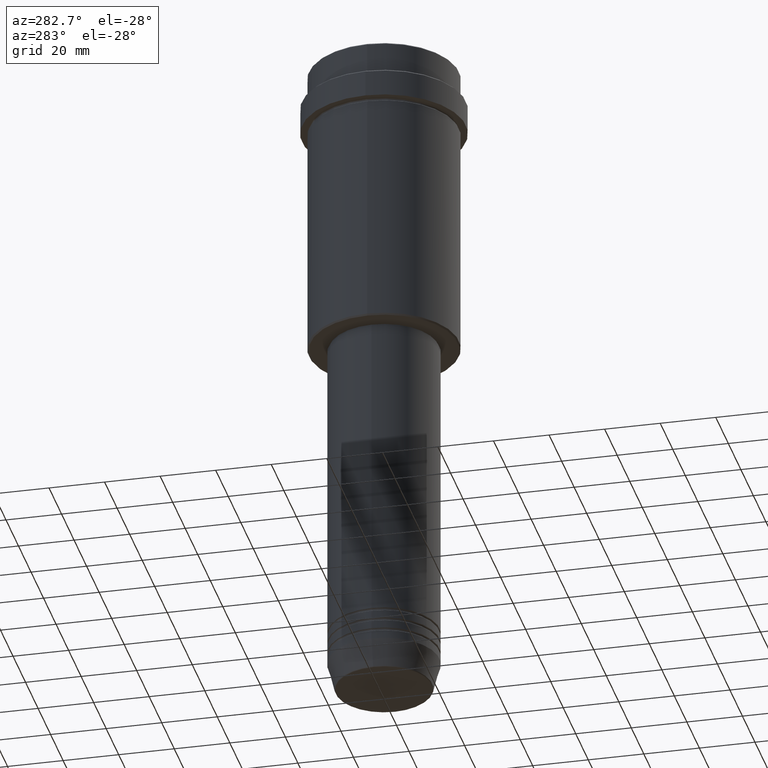
[diagram: clean part render]
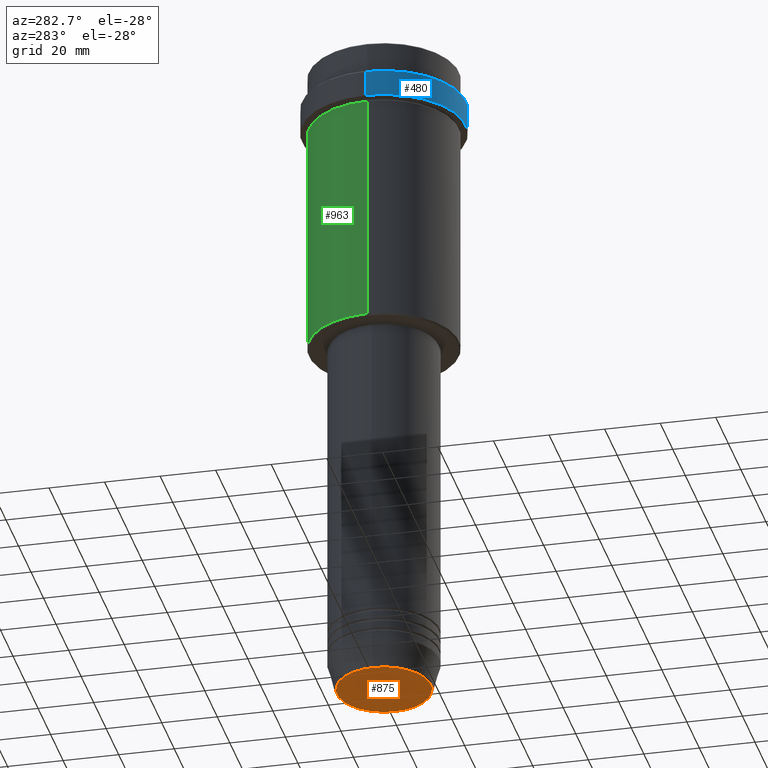
[diagram: same view with three faces highlighted in distinct colors, each labeled with its STEP entity id]
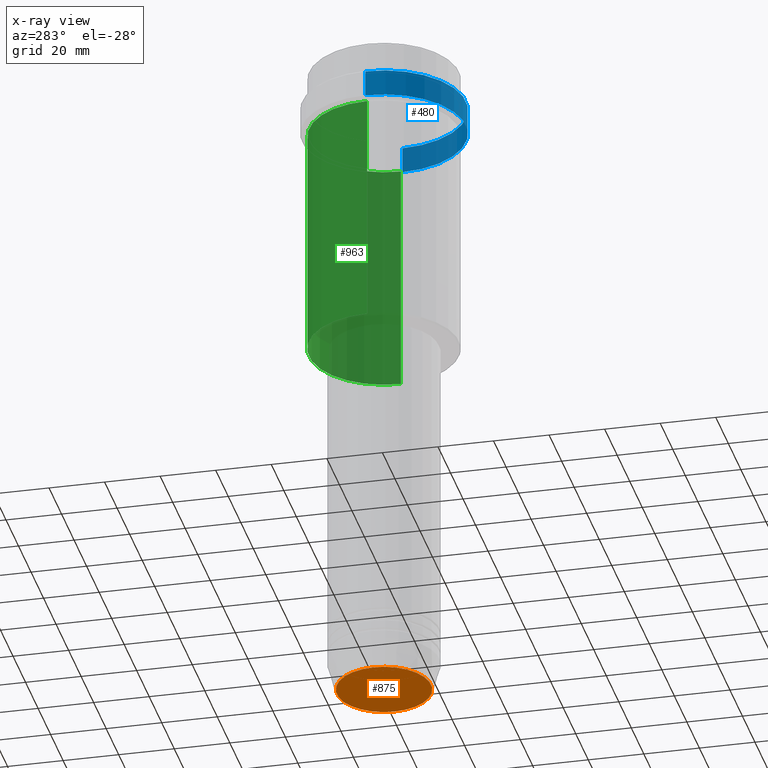
[diagram: x-ray of the same camera — body ghosted, the three highlighted faces saturated]
A machine part, auxiliary view with three faces highlighted in distinct colors.
The next image is the same camera in x-ray (body ghosted, the three faces saturated) — at least one of them is partly hidden behind the body in this view.
Their STEP definitions:

[orange] entity #875 — the highlighted planar face has unit normal (0, -0, 1).
#49 = EDGE_CURVE ( 'NONE', #831, #1056, #602, .T. ) ;
#79 = CARTESIAN_POINT ( 'NONE',  ( 16.93684458169929741, 0.000000000000000000, -243.0000000000000568 ) ) ;
#130 = DIRECTION ( 'NONE',  ( 0.000000000000000000, 0.000000000000000000, -1.000000000000000000 ) ) ;
#208 = DIRECTION ( 'NONE',  ( 0.000000000000000000, 0.000000000000000000, -1.000000000000000000 ) ) ;
#219 = DIRECTION ( 'NONE',  ( 1.000000000000000000, 0.000000000000000000, 0.000000000000000000 ) ) ;
#286 = AXIS2_PLACEMENT_3D ( 'NONE', #376, #1137, #1278 ) ;
#376 = CARTESIAN_POINT ( 'NONE',  ( 0.000000000000000000, 0.000000000000000000, -243.0000000000000568 ) ) ;
#381 = CARTESIAN_POINT ( 'NONE',  ( -16.93684458169929741, 2.103738199747890381E-15, -243.0000000000000568 ) ) ;
#422 = CIRCLE ( 'NONE', #1208, 16.93684458169929741 ) ;
#427 = CARTESIAN_POINT ( 'NONE',  ( 0.000000000000000000, 0.000000000000000000, -243.0000000000000568 ) ) ;
#602 = CIRCLE ( 'NONE', #851, 16.93684458169929741 ) ;
#735 = ORIENTED_EDGE ( 'NONE', *, *, #49, .T. ) ;
#788 = CARTESIAN_POINT ( 'NONE',  ( 0.000000000000000000, 0.000000000000000000, -243.0000000000000568 ) ) ;
#831 = VERTEX_POINT ( 'NONE', #381 ) ;
#851 = AXIS2_PLACEMENT_3D ( 'NONE', #427, #208, #219 ) ;
#875 = ADVANCED_FACE ( 'NONE', ( #914 ), #1153, .F. ) ;
#877 = DIRECTION ( 'NONE',  ( 1.000000000000000000, 0.000000000000000000, 0.000000000000000000 ) ) ;
#914 = FACE_OUTER_BOUND ( 'NONE', #1030, .T. ) ;
#1030 = EDGE_LOOP ( 'NONE', ( #1100, #735 ) ) ;
#1056 = VERTEX_POINT ( 'NONE', #79 ) ;
#1100 = ORIENTED_EDGE ( 'NONE', *, *, #1195, .T. ) ;
#1137 = DIRECTION ( 'NONE',  ( 0.000000000000000000, -0.000000000000000000, 1.000000000000000000 ) ) ;
#1153 = PLANE ( 'NONE',  #286 ) ;
#1195 = EDGE_CURVE ( 'NONE', #1056, #831, #422, .T. ) ;
#1208 = AXIS2_PLACEMENT_3D ( 'NONE', #788, #130, #877 ) ;
#1278 = DIRECTION ( 'NONE',  ( 1.000000000000000000, 0.000000000000000000, 0.000000000000000000 ) ) ;

[blue] entity #480 — the highlighted cylindrical surface (partial cylindrical patch) has radius 29.5 mm, axis along (-0, -0, 1).
#74 = CARTESIAN_POINT ( 'NONE',  ( 0.000000000000000000, 0.000000000000000000, -12.50000000000008704 ) ) ;
#113 = DIRECTION ( 'NONE',  ( -0.000000000000000000, -0.000000000000000000, 1.000000000000000000 ) ) ;
#134 = CARTESIAN_POINT ( 'NONE',  ( 0.000000000000000000, 0.000000000000000000, -22.00000000000000711 ) ) ;
#161 = CARTESIAN_POINT ( 'NONE',  ( -29.50000000000000000, 3.612708057484691604E-15, 0.000000000000000000 ) ) ;
#177 = ORIENTED_EDGE ( 'NONE', *, *, #571, .T. ) ;
#206 = DIRECTION ( 'NONE',  ( 1.000000000000000000, 0.000000000000000000, 0.000000000000000000 ) ) ;
#213 = VECTOR ( 'NONE', #1350, 1000.000000000000000 ) ;
#217 = ORIENTED_EDGE ( 'NONE', *, *, #238, .T. ) ;
#238 = EDGE_CURVE ( 'NONE', #825, #1246, #485, .T. ) ;
#244 = DIRECTION ( 'NONE',  ( 1.000000000000000000, 0.000000000000000000, 0.000000000000000000 ) ) ;
#251 = AXIS2_PLACEMENT_3D ( 'NONE', #74, #1069, #459 ) ;
#261 = DIRECTION ( 'NONE',  ( -0.000000000000000000, -0.000000000000000000, 1.000000000000000000 ) ) ;
#278 = EDGE_CURVE ( 'NONE', #565, #409, #347, .T. ) ;
#347 = CIRCLE ( 'NONE', #558, 29.49999999999999645 ) ;
#409 = VERTEX_POINT ( 'NONE', #1370 ) ;
#459 = DIRECTION ( 'NONE',  ( 1.000000000000000000, 0.000000000000000000, 0.000000000000000000 ) ) ;
#480 = ADVANCED_FACE ( 'NONE', ( #945 ), #1377, .T. ) ;
#485 = CIRCLE ( 'NONE', #251, 29.50000000000000000 ) ;
#515 = CARTESIAN_POINT ( 'NONE',  ( 29.50000000000000000, 0.000000000000000000, 0.000000000000000000 ) ) ;
#554 = ORIENTED_EDGE ( 'NONE', *, *, #1317, .F. ) ;
#558 = AXIS2_PLACEMENT_3D ( 'NONE', #134, #1247, #244 ) ;
#565 = VERTEX_POINT ( 'NONE', #842 ) ;
#571 = EDGE_CURVE ( 'NONE', #409, #825, #1410, .T. ) ;
#578 = VECTOR ( 'NONE', #113, 1000.000000000000000 ) ;
#584 = CARTESIAN_POINT ( 'NONE',  ( 29.50000000000000000, 0.000000000000000000, -12.50000000000008704 ) ) ;
#825 = VERTEX_POINT ( 'NONE', #584 ) ;
#842 = CARTESIAN_POINT ( 'NONE',  ( -29.49999999999999645, 3.612708057484690815E-15, -22.00000000000000711 ) ) ;
#945 = FACE_OUTER_BOUND ( 'NONE', #978, .T. ) ;
#978 = EDGE_LOOP ( 'NONE', ( #554, #1067, #177, #217 ) ) ;
#1067 = ORIENTED_EDGE ( 'NONE', *, *, #278, .T. ) ;
#1069 = DIRECTION ( 'NONE',  ( 0.000000000000000000, 0.000000000000000000, -1.000000000000000000 ) ) ;
#1072 = CARTESIAN_POINT ( 'NONE',  ( -29.50000000000000000, 3.612708057484691604E-15, -12.50000000000008704 ) ) ;
#1225 = AXIS2_PLACEMENT_3D ( 'NONE', #1279, #261, #206 ) ;
#1233 = LINE ( 'NONE', #161, #213 ) ;
#1246 = VERTEX_POINT ( 'NONE', #1072 ) ;
#1247 = DIRECTION ( 'NONE',  ( -0.000000000000000000, -0.000000000000000000, 1.000000000000000000 ) ) ;
#1279 = CARTESIAN_POINT ( 'NONE',  ( 0.000000000000000000, 0.000000000000000000, 0.000000000000000000 ) ) ;
#1317 = EDGE_CURVE ( 'NONE', #565, #1246, #1233, .T. ) ;
#1350 = DIRECTION ( 'NONE',  ( -0.000000000000000000, -0.000000000000000000, 1.000000000000000000 ) ) ;
#1370 = CARTESIAN_POINT ( 'NONE',  ( 29.49999999999999645, 0.000000000000000000, -22.00000000000000711 ) ) ;
#1377 = CYLINDRICAL_SURFACE ( 'NONE', #1225, 29.50000000000000000 ) ;
#1410 = LINE ( 'NONE', #515, #578 ) ;

[green] entity #963 — the highlighted cylindrical surface (partial cylindrical patch) has radius 27 mm, axis along (-0, -0, 1).
#4 = CARTESIAN_POINT ( 'NONE',  ( 27.00000000000000355, 0.000000000000000000, -23.00000000000001421 ) ) ;
#20 = EDGE_CURVE ( 'NONE', #52, #1095, #1082, .T. ) ;
#27 = AXIS2_PLACEMENT_3D ( 'NONE', #109, #869, #478 ) ;
#52 = VERTEX_POINT ( 'NONE', #4 ) ;
#65 = EDGE_CURVE ( 'NONE', #892, #52, #442, .T. ) ;
#82 = DIRECTION ( 'NONE',  ( -0.000000000000000000, -0.000000000000000000, 1.000000000000000000 ) ) ;
#109 = CARTESIAN_POINT ( 'NONE',  ( 0.000000000000000000, 0.000000000000000000, -23.00000000000001421 ) ) ;
#145 = CIRCLE ( 'NONE', #1011, 27.00000000000000355 ) ;
#152 = DIRECTION ( 'NONE',  ( -0.000000000000000000, -0.000000000000000000, 1.000000000000000000 ) ) ;
#189 = CARTESIAN_POINT ( 'NONE',  ( 0.000000000000000000, 0.000000000000000000, 0.000000000000000000 ) ) ;
#300 = CYLINDRICAL_SURFACE ( 'NONE', #1065, 27.00000000000000355 ) ;
#397 = VECTOR ( 'NONE', #152, 1000.000000000000000 ) ;
#433 = EDGE_CURVE ( 'NONE', #892, #653, #145, .T. ) ;
#442 = LINE ( 'NONE', #882, #397 ) ;
#478 = DIRECTION ( 'NONE',  ( 1.000000000000000000, 0.000000000000000000, 0.000000000000000000 ) ) ;
#519 = DIRECTION ( 'NONE',  ( 1.000000000000000000, 0.000000000000000000, 0.000000000000000000 ) ) ;
#575 = CARTESIAN_POINT ( 'NONE',  ( -27.00000000000000355, 3.306546357697854128E-15, -23.00000000000001421 ) ) ;
#625 = EDGE_CURVE ( 'NONE', #653, #1095, #976, .T. ) ;
#653 = VERTEX_POINT ( 'NONE', #1229 ) ;
#654 = DIRECTION ( 'NONE',  ( -0.000000000000000000, -0.000000000000000000, 1.000000000000000000 ) ) ;
#674 = VECTOR ( 'NONE', #1177, 1000.000000000000000 ) ;
#716 = EDGE_LOOP ( 'NONE', ( #952, #1055, #1263, #1018 ) ) ;
#869 = DIRECTION ( 'NONE',  ( -0.000000000000000000, -0.000000000000000000, 1.000000000000000000 ) ) ;
#882 = CARTESIAN_POINT ( 'NONE',  ( 27.00000000000000355, 0.000000000000000000, 0.000000000000000000 ) ) ;
#892 = VERTEX_POINT ( 'NONE', #1129 ) ;
#952 = ORIENTED_EDGE ( 'NONE', *, *, #433, .T. ) ;
#963 = ADVANCED_FACE ( 'NONE', ( #1311 ), #300, .T. ) ;
#976 = LINE ( 'NONE', #980, #674 ) ;
#980 = CARTESIAN_POINT ( 'NONE',  ( -27.00000000000000355, 3.306546357697854128E-15, 0.000000000000000000 ) ) ;
#1011 = AXIS2_PLACEMENT_3D ( 'NONE', #1059, #82, #1155 ) ;
#1018 = ORIENTED_EDGE ( 'NONE', *, *, #65, .F. ) ;
#1055 = ORIENTED_EDGE ( 'NONE', *, *, #625, .T. ) ;
#1059 = CARTESIAN_POINT ( 'NONE',  ( 0.000000000000000000, 0.000000000000000000, -107.5000000000000000 ) ) ;
#1065 = AXIS2_PLACEMENT_3D ( 'NONE', #189, #654, #519 ) ;
#1082 = CIRCLE ( 'NONE', #27, 27.00000000000000355 ) ;
#1095 = VERTEX_POINT ( 'NONE', #575 ) ;
#1129 = CARTESIAN_POINT ( 'NONE',  ( 27.00000000000000355, 0.000000000000000000, -107.5000000000000000 ) ) ;
#1155 = DIRECTION ( 'NONE',  ( -1.000000000000000000, 0.000000000000000000, 0.000000000000000000 ) ) ;
#1177 = DIRECTION ( 'NONE',  ( -0.000000000000000000, -0.000000000000000000, 1.000000000000000000 ) ) ;
#1229 = CARTESIAN_POINT ( 'NONE',  ( -27.00000000000000355, 3.306546357697854128E-15, -107.5000000000000000 ) ) ;
#1263 = ORIENTED_EDGE ( 'NONE', *, *, #20, .F. ) ;
#1311 = FACE_OUTER_BOUND ( 'NONE', #716, .T. ) ;